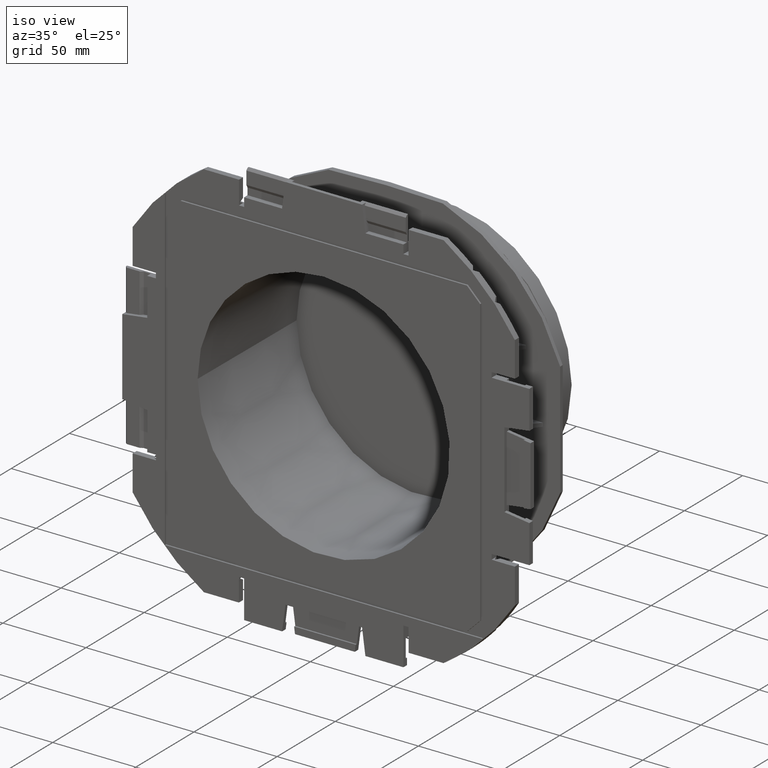
[diagram: clean part render]
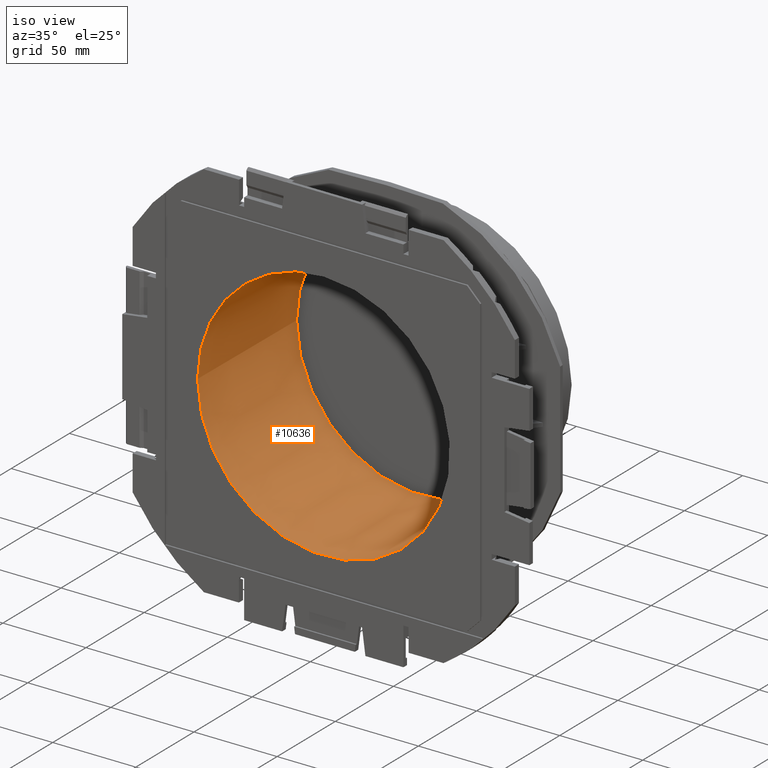
[diagram: same view with one face highlighted and labeled with its STEP entity id]
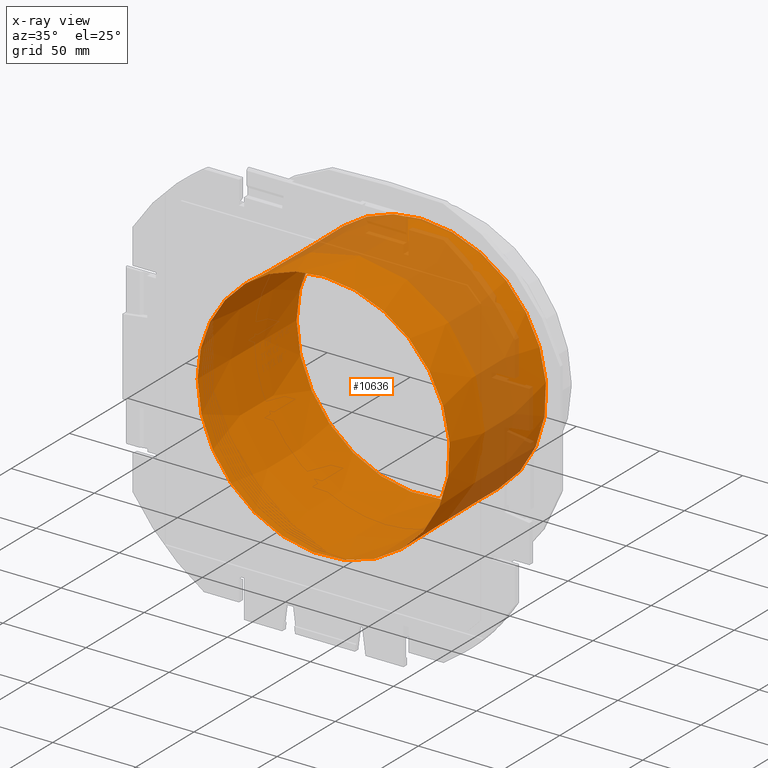
[diagram: x-ray of the same camera — body ghosted, the highlighted face saturated]
A machine part, iso view. The second image highlights one B-rep face of the part: STEP entity #10636.
The next image is the same camera in x-ray: the body ghosted, the highlighted face saturated — about 27% of this face is hidden behind the body in this view.
In plain terms, the highlighted conical surface has half-angle 0.5 deg.
Its self-contained STEP definition (entity closure, byte-faithful):
#142=CONICAL_SURFACE('',#11419,75.15,0.00872664625997165);
#523=CIRCLE('',#10703,75.8830568944237);
#524=CIRCLE('',#10704,75.8830568944237);
#683=CIRCLE('',#11420,75.15);
#684=CIRCLE('',#11421,75.15);
#1206=FACE_OUTER_BOUND('',#1769,.T.);
#1769=EDGE_LOOP('',(#9101,#9102,#9103,#9104,#9105,#9106));
#2774=LINE('',#20241,#3769);
#3769=VECTOR('',#13874,75.15);
#3788=VERTEX_POINT('',#13958);
#3789=VERTEX_POINT('',#13959);
#4747=VERTEX_POINT('',#20238);
#4748=VERTEX_POINT('',#20239);
#4762=EDGE_CURVE('',#3788,#3789,#523,.F.);
#4763=EDGE_CURVE('',#3789,#3788,#524,.F.);
#6219=EDGE_CURVE('',#4747,#4748,#683,.T.);
#6220=EDGE_CURVE('',#4748,#3789,#2774,.T.);
#6221=EDGE_CURVE('',#4748,#4747,#684,.T.);
#9101=ORIENTED_EDGE('',*,*,#6219,.T.);
#9102=ORIENTED_EDGE('',*,*,#6220,.T.);
#9103=ORIENTED_EDGE('',*,*,#4762,.F.);
#9104=ORIENTED_EDGE('',*,*,#4763,.F.);
#9105=ORIENTED_EDGE('',*,*,#6220,.F.);
#9106=ORIENTED_EDGE('',*,*,#6221,.T.);
#10636=ADVANCED_FACE('',(#1206),#142,.F.);
#10703=AXIS2_PLACEMENT_3D('',#13960,#11462,#11463);
#10704=AXIS2_PLACEMENT_3D('',#13961,#11464,#11465);
#11419=AXIS2_PLACEMENT_3D('',#20237,#13870,#13871);
#11420=AXIS2_PLACEMENT_3D('',#20240,#13872,#13873);
#11421=AXIS2_PLACEMENT_3D('',#20242,#13875,#13876);
#11462=DIRECTION('center_axis',(0.,-1.,0.));
#11463=DIRECTION('ref_axis',(1.,0.,0.));
#11464=DIRECTION('center_axis',(0.,-1.,0.));
#11465=DIRECTION('ref_axis',(1.,0.,0.));
#13870=DIRECTION('center_axis',(0.,-1.,0.));
#13871=DIRECTION('ref_axis',(1.,0.,0.));
#13872=DIRECTION('center_axis',(0.,1.,0.));
#13873=DIRECTION('ref_axis',(1.,0.,0.));
#13874=DIRECTION('',(-0.00872653549837393,-0.999961923064171,-1.06869237657294E-18));
#13875=DIRECTION('center_axis',(0.,1.,0.));
#13876=DIRECTION('ref_axis',(1.,0.,0.));
#13958=CARTESIAN_POINT('',(0.,-88.5,75.8830568944237));
#13959=CARTESIAN_POINT('',(-75.8830568944237,-88.5,-9.29299427352725E-15));
#13960=CARTESIAN_POINT('Origin',(0.,-88.5,0.));
#13961=CARTESIAN_POINT('Origin',(0.,-88.5,0.));
#20237=CARTESIAN_POINT('Origin',(0.,-4.5,0.));
#20238=CARTESIAN_POINT('',(0.,-4.5,75.15));
#20239=CARTESIAN_POINT('',(-75.15,-4.5,-9.20322069559236E-15));
#20240=CARTESIAN_POINT('Origin',(0.,-4.5,0.));
#20241=CARTESIAN_POINT('',(-75.15,-4.5,-9.20322069559236E-15));
#20242=CARTESIAN_POINT('Origin',(0.,-4.5,0.));